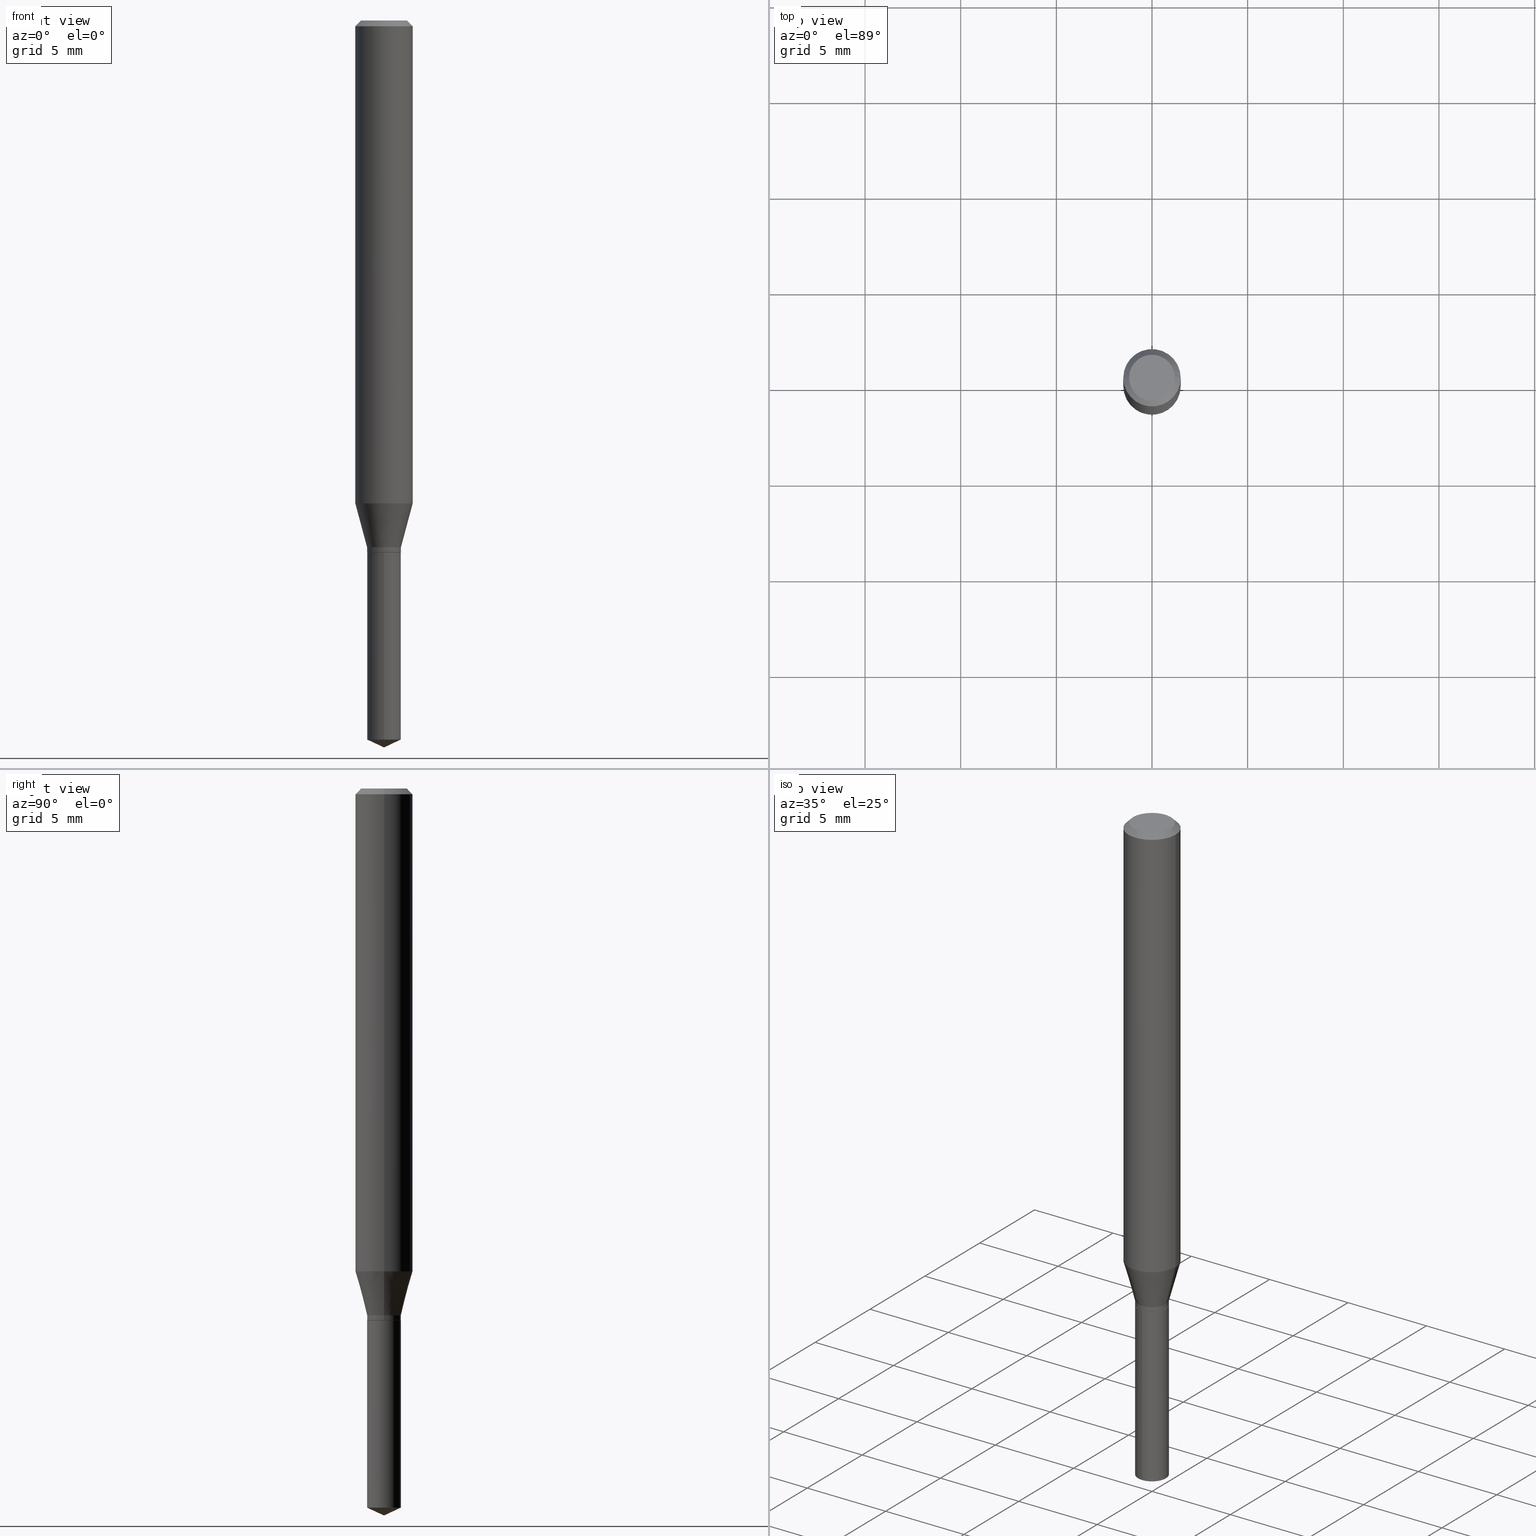
[diagram: canonical four-view strip — front | top / right | iso, engineering-drawing reading convention]
A machine part, canonical four-view strip (front | top / right | iso — engineering-drawing reading convention). The complete STEP part file that produces these views, byte-faithful:
ISO-10303-21;
HEADER;
FILE_DESCRIPTION (( 'STEP AP203' ),
    '1' );
FILE_NAME ('07573.STEP',
    '2024-04-23T23:09:27',
    ( '' ),
    ( '' ),
    'SwSTEP 2.0',
    'SolidWorks 2023',
    '' );
FILE_SCHEMA (( 'CONFIG_CONTROL_DESIGN' ));
ENDSEC;

DATA;
#1 = EDGE_CURVE ( 'NONE', #14, #194, #490, .T. ) ;
#2 = CARTESIAN_POINT ( 'NONE',  ( 2.888098660104664204E-31, -4.123439461173780263E-17, -0.01181000000000007218 ) ) ;
#3 = LOCAL_TIME ( 19, 9, 27.00000000000000000, #22 ) ;
#4 = DIRECTION ( 'NONE',  ( -2.445470214571802116E-29, 3.491479321953280158E-15, 1.000000000000000000 ) ) ;
#5 = ORIENTED_EDGE ( 'NONE', *, *, #154, .F. ) ;
#6 = ORIENTED_EDGE ( 'NONE', *, *, #67, .F. ) ;
#7 = ADVANCED_FACE ( 'NONE', ( #228 ), #413, .F. ) ;
#8 = FACE_OUTER_BOUND ( 'NONE', #453, .T. ) ;
#9 = CIRCLE ( 'NONE', #259, 0.03434999999999999859 ) ;
#10 = CARTESIAN_POINT ( 'NONE',  ( 2.676565608369631794E-29, -3.821426325363822773E-15, -1.094499999999999806 ) ) ;
#11 = ADVANCED_BREP_SHAPE_REPRESENTATION ( '07573', ( #165, #324, #473 ), #87 ) ;
#12 = APPROVAL_PERSON_ORGANIZATION ( #247, #250, #180 ) ;
#13 = VERTEX_POINT ( 'NONE', #85 ) ;
#14 = VERTEX_POINT ( 'NONE', #417 ) ;
#15 = DIRECTION ( 'NONE',  ( 1.000000000000000000, -6.982962677686261977E-15, 0.000000000000000000 ) ) ;
#16 = DIRECTION ( 'NONE',  ( -6.982962677686265922E-15, -1.000000000000000000, 0.000000000000000000 ) ) ;
#17 = ADVANCED_FACE ( 'NONE', ( #288 ), #277, .T. ) ;
#18 = ORIENTED_EDGE ( 'NONE', *, *, #223, .T. ) ;
#19 = LINE ( 'NONE', #386, #390 ) ;
#20 = CARTESIAN_POINT ( 'NONE',  ( 2.650888185904688008E-29, -3.784765771305969621E-15, -1.084000000000000075 ) ) ;
#21 = ORIENTED_EDGE ( 'NONE', *, *, #211, .T. ) ;
#22 = COORDINATED_UNIVERSAL_TIME_OFFSET ( 5, 0, .BEHIND. ) ;
#23 = DIRECTION ( 'NONE',  ( -2.445468806185136597E-29, 3.491481338843145583E-15, 1.000000000000000000 ) ) ;
#24 = ORIENTED_EDGE ( 'NONE', *, *, #410, .F. ) ;
#25 = EDGE_LOOP ( 'NONE', ( #5, #361, #137, #60 ) ) ;
#26 = CARTESIAN_POINT ( 'NONE',  ( 2.676565608369632355E-29, -3.821426325363822773E-15, -1.094500000000000028 ) ) ;
#27 = CLOSED_SHELL ( 'NONE', ( #382, #123, #360, #486, #7 ) ) ;
#28 = PRODUCT_DEFINITION_FORMATION_WITH_SPECIFIED_SOURCE ( 'ANY', '', #313, .NOT_KNOWN. ) ;
#29 = CARTESIAN_POINT ( 'NONE',  ( -9.261968845786000133E-28, 1.322362114038720264E-13, 37.87397874015748300 ) ) ;
#30 = PERSON_AND_ORGANIZATION ( #380, #157 ) ;
#31 = ADVANCED_FACE ( 'NONE', ( #373 ), #297, .T. ) ;
#32 = VECTOR ( 'NONE', #183, 39.37007874015748854 ) ;
#33 = CC_DESIGN_APPROVAL ( #250, ( #28 ) ) ;
#34 = EDGE_CURVE ( 'NONE', #347, #56, #79, .T. ) ;
#35 = CARTESIAN_POINT ( 'NONE',  ( -3.626063974181176191E-30, -8.173693616580033014E-15, -1.094500000000000028 ) ) ;
#36 = LINE ( 'NONE', #310, #190 ) ;
#37 = PERSON_AND_ORGANIZATION_ROLE ( 'design_supplier' ) ;
#38 = EDGE_CURVE ( 'NONE', #256, #160, #416, .T. ) ;
#39 = APPLICATION_CONTEXT ( 'configuration controlled 3d designs of mechanical parts and assemblies' ) ;
#40 = ORIENTED_EDGE ( 'NONE', *, *, #142, .F. ) ;
#41 = CYLINDRICAL_SURFACE ( 'NONE', #383, 0.03484999999999999903 ) ;
#42 = ORIENTED_EDGE ( 'NONE', *, *, #67, .T. ) ;
#43 = LOCAL_TIME ( 19, 9, 27.00000000000000000, #279 ) ;
#44 = DIRECTION ( 'NONE',  ( 2.445468806185136597E-29, -3.491481338843145583E-15, -1.000000000000000000 ) ) ;
#45 = LENGTH_MEASURE_WITH_UNIT ( LENGTH_MEASURE( 0.02539999999999999897 ), #290 );
#46 = CARTESIAN_POINT ( 'NONE',  ( 0.05905000000000006077, -4.123439461173744764E-16, 2.879382386107503023E-30 ) ) ;
#47 = VECTOR ( 'NONE', #242, 39.37007874015748143 ) ;
#48 = DIRECTION ( 'NONE',  ( -1.000000000000000000, 6.982962677686266711E-15, 0.000000000000000000 ) ) ;
#49 = AXIS2_PLACEMENT_3D ( 'NONE', #110, #116, #351 ) ;
#50 = EDGE_CURVE ( 'NONE', #311, #342, #156, .T. ) ;
#51 = FACE_OUTER_BOUND ( 'NONE', #396, .T. ) ;
#52 = DIRECTION ( 'NONE',  ( 1.000000000000000000, -6.982962677686261189E-15, 0.000000000000000000 ) ) ;
#53 = VERTEX_POINT ( 'NONE', #420 ) ;
#54 = DIRECTION ( 'NONE',  ( -2.445468806185136597E-29, 3.491481338843145583E-15, 1.000000000000000000 ) ) ;
#55 = CIRCLE ( 'NONE', #127, 0.05904999999999999832 ) ;
#56 = VERTEX_POINT ( 'NONE', #295 ) ;
#57 = CARTESIAN_POINT ( 'NONE',  ( -2.433562493173396016E-16, -0.03485000000000382236, -1.094499999999999806 ) ) ;
#58 = CARTESIAN_POINT ( 'NONE',  ( 3.658667988020872822E-29, -5.223602213574301462E-15, -1.496099999999999985 ) ) ;
#59 = ORIENTED_EDGE ( 'NONE', *, *, #280, .T. ) ;
#60 = ORIENTED_EDGE ( 'NONE', *, *, #336, .F. ) ;
#61 = CONICAL_SURFACE ( 'NONE', #391, 0.03434999999999999859, 0.7853981633972775267 ) ;
#62 = AXIS2_PLACEMENT_3D ( 'NONE', #457, #78, #366 ) ;
#63 = ORIENTED_EDGE ( 'NONE', *, *, #142, .T. ) ;
#64 = CC_DESIGN_PERSON_AND_ORGANIZATION_ASSIGNMENT ( #337, #171, ( #313 ) ) ;
#65 = LINE ( 'NONE', #451, #306 ) ;
#66 = COORDINATED_UNIVERSAL_TIME_OFFSET ( 5, 0, .BEHIND. ) ;
#67 = EDGE_CURVE ( 'NONE', #468, #285, #9, .T. ) ;
#68 = CALENDAR_DATE ( 2024, 23, 4 ) ;
#69 = AXIS2_PLACEMENT_3D ( 'NONE', #161, #128, #92 ) ;
#70 = CARTESIAN_POINT ( 'NONE',  ( -0.04724000000000000421, 3.504923541997677355E-16, -3.380025165670481712E-19 ) ) ;
#71 = CC_DESIGN_SECURITY_CLASSIFICATION ( #309, ( #28 ) ) ;
#72 = PERSON_AND_ORGANIZATION_ROLE ( 'creator' ) ;
#73 = CC_DESIGN_PERSON_AND_ORGANIZATION_ASSIGNMENT ( #225, #362, ( #309 ) ) ;
#74 = FACE_OUTER_BOUND ( 'NONE', #201, .T. ) ;
#75 = ORIENTED_EDGE ( 'NONE', *, *, #414, .T. ) ;
#76 = DIRECTION ( 'NONE',  ( 1.000000000000000000, -6.982962677686266711E-15, 0.000000000000000000 ) ) ;
#77 = ORIENTED_EDGE ( 'NONE', *, *, #1, .F. ) ;
#78 = DIRECTION ( 'NONE',  ( -2.445470214571802116E-29, 3.491479321953280158E-15, 1.000000000000000000 ) ) ;
#79 = CIRCLE ( 'NONE', #418, 0.04724000000000000421 ) ;
#80 = CARTESIAN_POINT ( 'NONE',  ( 8.265746106709734507E-48, -1.180129479067563789E-33, -3.380025165646692144E-19 ) ) ;
#81 = VECTOR ( 'NONE', #444, 39.37007874015748143 ) ;
#82 = EDGE_CURVE ( 'NONE', #304, #13, #263, .T. ) ;
#83 = CARTESIAN_POINT ( 'NONE',  ( 2.676565608369632355E-29, -3.821426325363822773E-15, -1.094500000000000028 ) ) ;
#84 = DIRECTION ( 'NONE',  ( -2.445470214571802116E-29, 3.491479321953280158E-15, 1.000000000000000000 ) ) ;
#85 = CARTESIAN_POINT ( 'NONE',  ( 2.476241434124310969E-16, 0.03484999999999483650, -1.479849178113298525 ) ) ;
#86 = DIRECTION ( 'NONE',  ( 1.000000000000000000, -6.982962677686266711E-15, 4.876185090822587894E-29 ) ) ;
#87 =( GEOMETRIC_REPRESENTATION_CONTEXT ( 3 ) GLOBAL_UNCERTAINTY_ASSIGNED_CONTEXT ( ( #482 ) ) GLOBAL_UNIT_ASSIGNED_CONTEXT ( ( #196, #443, #484 ) ) REPRESENTATION_CONTEXT ( 'NONE', 'WORKASPACE' ) );
#88 = APPROVAL ( #466, 'UNSPECIFIED' ) ;
#89 = AXIS2_PLACEMENT_3D ( 'NONE', #255, #412, #76 ) ;
#90 = LINE ( 'NONE', #167, #426 ) ;
#91 = EDGE_LOOP ( 'NONE', ( #299, #197, #395, #77 ) ) ;
#92 = DIRECTION ( 'NONE',  ( -6.982962677686266711E-15, -1.000000000000000000, 3.520397390770412060E-15 ) ) ;
#93 = LINE ( 'NONE', #202, #316 ) ;
#94 = CLOSED_SHELL ( 'NONE', ( #174, #17, #319, #181, #428, #372, #177, #31, #375, #479, #394, #289 ) ) ;
#95 = CIRCLE ( 'NONE', #213, 0.03434999999999999859 ) ;
#96 = AXIS2_PLACEMENT_3D ( 'NONE', #254, #193, #419 ) ;
#97 = EDGE_CURVE ( 'NONE', #308, #342, #424, .T. ) ;
#98 = DIRECTION ( 'NONE',  ( -2.445468806185136597E-29, 3.491481338843145583E-15, 1.000000000000000000 ) ) ;
#99 = ORIENTED_EDGE ( 'NONE', *, *, #82, .F. ) ;
#100 = CYLINDRICAL_SURFACE ( 'NONE', #346, 0.05905000000000006077 ) ;
#101 = DATE_TIME_ROLE ( 'creation_date' ) ;
#102 = APPROVAL_ROLE ( '' ) ;
#103 = DATE_AND_TIME ( #249, #43 ) ;
#104 = LINE ( 'NONE', #210, #81 ) ;
#105 = CARTESIAN_POINT ( 'NONE',  ( 0.05904999999999999832, -4.535783407291118600E-16, -0.01181000000000007218 ) ) ;
#106 = ORIENTED_EDGE ( 'NONE', *, *, #348, .T. ) ;
#107 = CIRCLE ( 'NONE', #399, 0.03484999999999999903 ) ;
#108 = CYLINDRICAL_SURFACE ( 'NONE', #96, 0.03484999999999999903 ) ;
#109 = PERSON_AND_ORGANIZATION ( #380, #157 ) ;
#110 = CARTESIAN_POINT ( 'NONE',  ( 2.650888185904688008E-29, -3.784765771305969621E-15, -1.084000000000000075 ) ) ;
#111 = EDGE_LOOP ( 'NONE', ( #236, #21, #106, #24 ) ) ;
#112 = DIRECTION ( 'NONE',  ( 1.000000000000000000, -6.982962677686265922E-15, 4.876176775795935793E-29 ) ) ;
#113 = ORIENTED_EDGE ( 'NONE', *, *, #172, .F. ) ;
#114 = CARTESIAN_POINT ( 'NONE',  ( -0.03484999999999999903, 2.476241434123949079E-16, -1.714248878953834781E-30 ) ) ;
#115 = ORIENTED_EDGE ( 'NONE', *, *, #1, .T. ) ;
#116 = DIRECTION ( 'NONE',  ( -2.445468806185136597E-29, 3.491481338843145583E-15, 1.000000000000000000 ) ) ;
#117 = AXIS2_PLACEMENT_3D ( 'NONE', #349, #303, #86 ) ;
#118 = FACE_OUTER_BOUND ( 'NONE', #387, .T. ) ;
#119 = ORIENTED_EDGE ( 'NONE', *, *, #50, .T. ) ;
#120 = CIRCLE ( 'NONE', #463, 0.05905000000000011628 ) ;
#121 = CARTESIAN_POINT ( 'NONE',  ( 2.676565608369631794E-29, -3.821426325363822773E-15, -1.094499999999999806 ) ) ;
#122 = DIRECTION ( 'NONE',  ( 1.000000000000000000, -6.982962677686261189E-15, 0.000000000000000000 ) ) ;
#123 = ADVANCED_FACE ( 'NONE', ( #234 ), #146, .T. ) ;
#124 = DIRECTION ( 'NONE',  ( -2.445468806185136597E-29, 3.491481338843145583E-15, 1.000000000000000000 ) ) ;
#125 = ORIENTED_EDGE ( 'NONE', *, *, #158, .T. ) ;
#126 = ORIENTED_EDGE ( 'NONE', *, *, #97, .F. ) ;
#127 = AXIS2_PLACEMENT_3D ( 'NONE', #135, #469, #170 ) ;
#128 = DIRECTION ( 'NONE',  ( -2.445470214571802116E-29, 3.491479321953280158E-15, 1.000000000000000000 ) ) ;
#129 = VECTOR ( 'NONE', #292, 39.37007874015748143 ) ;
#130 = DIRECTION ( 'NONE',  ( 6.439704144417042975E-15, 0.9063077870366541555, 0.4226182617406906150 ) ) ;
#131 = VERTEX_POINT ( 'NONE', #267 ) ;
#132 = DIRECTION ( 'NONE',  ( 0.7071067811864267805, -2.468850131080992517E-15, 0.7071067811866682540 ) ) ;
#133 = CARTESIAN_POINT ( 'NONE',  ( 0.000000000000000000, 0.000000000000000000, 0.000000000000000000 ) ) ;
#134 = CC_DESIGN_DATE_AND_TIME_ASSIGNMENT ( #219, #101, ( #333 ) ) ;
#135 = CARTESIAN_POINT ( 'NONE',  ( 2.888098660104664204E-31, -4.123439461173780263E-17, -0.01181000000000007218 ) ) ;
#136 = VECTOR ( 'NONE', #130, 39.37007874015748143 ) ;
#137 = ORIENTED_EDGE ( 'NONE', *, *, #140, .T. ) ;
#138 = PERSON_AND_ORGANIZATION ( #380, #157 ) ;
#139 = APPROVAL_PERSON_ORGANIZATION ( #30, #204, #102 ) ;
#140 = EDGE_CURVE ( 'NONE', #342, #308, #55, .T. ) ;
#141 = LINE ( 'NONE', #215, #400 ) ;
#142 = EDGE_CURVE ( 'NONE', #131, #13, #252, .T. ) ;
#143 = DIRECTION ( 'NONE',  ( -2.445468806185136597E-29, 3.491481338843145583E-15, 1.000000000000000000 ) ) ;
#144 = PERSON_AND_ORGANIZATION ( #380, #157 ) ;
#145 = FACE_OUTER_BOUND ( 'NONE', #270, .T. ) ;
#146 = CONICAL_SURFACE ( 'NONE', #69, 84.42940631927534412, 1.134464013796320447 ) ;
#147 = CIRCLE ( 'NONE', #173, 0.03484999999999999903 ) ;
#148 = DIRECTION ( 'NONE',  ( 1.000000000000000000, -6.982962677686261977E-15, 0.000000000000000000 ) ) ;
#149 = AXIS2_PLACEMENT_3D ( 'NONE', #189, #229, #329 ) ;
#150 = EDGE_LOOP ( 'NONE', ( #113, #356, #40 ) ) ;
#151 = EDGE_CURVE ( 'NONE', #162, #53, #93, .T. ) ;
#152 = DIRECTION ( 'NONE',  ( -2.445468806185136597E-29, 3.491481338843145583E-15, 1.000000000000000000 ) ) ;
#153 = EDGE_LOOP ( 'NONE', ( #442, #411 ) ) ;
#154 = EDGE_CURVE ( 'NONE', #56, #347, #335, .T. ) ;
#155 = PLANE ( 'NONE',  #235 ) ;
#156 = LINE ( 'NONE', #46, #187 ) ;
#157 = ORGANIZATION ( 'UNSPECIFIED', 'UNSPECIFIED', '' ) ;
#158 = EDGE_CURVE ( 'NONE', #53, #308, #300, .T. ) ;
#159 = DIRECTION ( 'NONE',  ( 2.445470214571801836E-29, -3.491479321953280158E-15, -1.000000000000000000 ) ) ;
#160 = VERTEX_POINT ( 'NONE', #264 ) ;
#161 = CARTESIAN_POINT ( 'NONE',  ( -9.261968845786000133E-28, 1.322362114038720264E-13, 37.87397874015748300 ) ) ;
#162 = VERTEX_POINT ( 'NONE', #272 ) ;
#163 = DIRECTION ( 'NONE',  ( -2.445468806185136597E-29, 3.491481338843145583E-15, 1.000000000000000000 ) ) ;
#164 = EDGE_CURVE ( 'NONE', #468, #256, #19, .T. ) ;
#165 = MANIFOLD_SOLID_BREP ( 'Body-Move/Copy2[1]', #27 ) ;
#166 = CONICAL_SURFACE ( 'NONE', #244, 0.03434999999999999859, 0.7853981633972775267 ) ;
#167 = CARTESIAN_POINT ( 'NONE',  ( -0.03434999999999999859, -3.577354895630228419E-15, -1.094500000000000028 ) ) ;
#168 = ORIENTED_EDGE ( 'NONE', *, *, #172, .T. ) ;
#169 = PRODUCT_RELATED_PRODUCT_CATEGORY ( 'detail', '', ( #313 ) ) ;
#170 = DIRECTION ( 'NONE',  ( 1.000000000000000000, -6.982962677686266711E-15, 0.000000000000000000 ) ) ;
#171 = PERSON_AND_ORGANIZATION_ROLE ( 'design_owner' ) ;
#172 = EDGE_CURVE ( 'NONE', #304, #131, #435, .T. ) ;
#173 = AXIS2_PLACEMENT_3D ( 'NONE', #121, #84, #257 ) ;
#174 = ADVANCED_FACE ( 'NONE', ( #51 ), #61, .T. ) ;
#175 = APPLICATION_PROTOCOL_DEFINITION ( 'international standard', 'config_control_design', 1994, #275 ) ;
#176 = ORIENTED_EDGE ( 'NONE', *, *, #280, .F. ) ;
#177 = ADVANCED_FACE ( 'NONE', ( #345 ), #392, .T. ) ;
#178 = EDGE_LOOP ( 'NONE', ( #475, #334, #119, #126 ) ) ;
#179 = FACE_OUTER_BOUND ( 'NONE', #231, .T. ) ;
#180 = APPROVAL_ROLE ( '' ) ;
#181 = ADVANCED_FACE ( 'NONE', ( #266 ), #365, .T. ) ;
#182 = CARTESIAN_POINT ( 'NONE',  ( 2.675342873966538993E-29, -3.819680584694400481E-15, -1.093999999999999861 ) ) ;
#183 = DIRECTION ( 'NONE',  ( 0.2588190451025211281, 1.565188264969622954E-15, 0.9659258262890679791 ) ) ;
#184 = COORDINATED_UNIVERSAL_TIME_OFFSET ( 5, 0, .BEHIND. ) ;
#185 = DIRECTION ( 'NONE',  ( -2.438088387897960049E-29, 3.491481338843145188E-15, 1.000000000000000000 ) ) ;
#186 = ORIENTED_EDGE ( 'NONE', *, *, #164, .F. ) ;
#187 = VECTOR ( 'NONE', #462, 39.37007874015748143 ) ;
#188 = AXIS2_PLACEMENT_3D ( 'NONE', #415, #406, #461 ) ;
#189 = CARTESIAN_POINT ( 'NONE',  ( 2.888098660104664204E-31, -4.123439461173780263E-17, -0.01181000000000007218 ) ) ;
#190 = VECTOR ( 'NONE', #357, 39.37007874015748143 ) ;
#191 = ORIENTED_EDGE ( 'NONE', *, *, #454, .T. ) ;
#192 = CARTESIAN_POINT ( 'NONE',  ( 2.476241434124216306E-16, 0.03484999999999618264, -1.094500000000000028 ) ) ;
#193 = DIRECTION ( 'NONE',  ( -2.445470214571802116E-29, 3.491479321953280158E-15, 1.000000000000000000 ) ) ;
#194 = VERTEX_POINT ( 'NONE', #57 ) ;
#195 = EDGE_CURVE ( 'NONE', #285, #160, #90, .T. ) ;
#196 =( CONVERSION_BASED_UNIT ( 'INCH', #45 ) LENGTH_UNIT ( ) NAMED_UNIT ( #325 ) );
#197 = ORIENTED_EDGE ( 'NONE', *, *, #430, .T. ) ;
#198 = CIRCLE ( 'NONE', #327, 0.03484999999999999903 ) ;
#199 = DIRECTION ( 'NONE',  ( 1.000000000000000000, -6.982962677686266711E-15, 4.876176775795935793E-29 ) ) ;
#200 = DIRECTION ( 'NONE',  ( 1.000000000000000000, -6.982962677686261189E-15, 0.000000000000000000 ) ) ;
#201 = EDGE_LOOP ( 'NONE', ( #63, #18, #330, #317 ) ) ;
#202 = CARTESIAN_POINT ( 'NONE',  ( -0.03484999999999999903, -3.537141627893574762E-15, -1.084000000000000075 ) ) ;
#203 = DIRECTION ( 'NONE',  ( 1.000000000000000000, -6.982962677686261977E-15, 0.000000000000000000 ) ) ;
#204 = APPROVAL ( #403, 'UNSPECIFIED' ) ;
#205 = EDGE_LOOP ( 'NONE', ( #291, #404, #344, #246 ) ) ;
#206 = AXIS2_PLACEMENT_3D ( 'NONE', #402, #320, #260 ) ;
#207 = DIRECTION ( 'NONE',  ( -2.445468806185136597E-29, 3.491481338843145583E-15, 1.000000000000000000 ) ) ;
#208 = MECHANICAL_CONTEXT ( 'NONE', #275, 'mechanical' ) ;
#209 = EDGE_CURVE ( 'NONE', #285, #468, #95, .T. ) ;
#210 = CARTESIAN_POINT ( 'NONE',  ( -2.433562493173396016E-16, -0.03485000000000382236, -1.094499999999999806 ) ) ;
#211 = EDGE_CURVE ( 'NONE', #162, #450, #328, .T. ) ;
#212 = PRODUCT_DEFINITION_SHAPE ( 'NONE', 'NONE',  #333 ) ;
#213 = AXIS2_PLACEMENT_3D ( 'NONE', #301, #207, #52 ) ;
#214 = DATE_AND_TIME ( #68, #405 ) ;
#215 = CARTESIAN_POINT ( 'NONE',  ( 0.03484999999999999903, -2.433562493173664229E-16, 1.699347606364883697E-30 ) ) ;
#216 = COORDINATED_UNIVERSAL_TIME_OFFSET ( 5, 0, .BEHIND. ) ;
#217 = AXIS2_PLACEMENT_3D ( 'NONE', #2, #44, #48 ) ;
#218 = CC_DESIGN_PERSON_AND_ORGANIZATION_ASSIGNMENT ( #109, #37, ( #28 ) ) ;
#219 = DATE_AND_TIME ( #359, #245 ) ;
#220 = CONICAL_SURFACE ( 'NONE', #447, 84.42940631927534412, 1.134464013796320447 ) ;
#221 = LINE ( 'NONE', #367, #32 ) ;
#222 = ORIENTED_EDGE ( 'NONE', *, *, #331, .F. ) ;
#223 = EDGE_CURVE ( 'NONE', #13, #14, #265, .T. ) ;
#224 = ORIENTED_EDGE ( 'NONE', *, *, #237, .F. ) ;
#225 = PERSON_AND_ORGANIZATION ( #380, #157 ) ;
#226 = ORIENTED_EDGE ( 'NONE', *, *, #454, .F. ) ;
#227 = DIRECTION ( 'NONE',  ( -2.445468806185136597E-29, 3.491481338843145583E-15, 1.000000000000000000 ) ) ;
#228 = FACE_OUTER_BOUND ( 'NONE', #370, .T. ) ;
#229 = DIRECTION ( 'NONE',  ( 2.445468806185136597E-29, -3.491481338843145583E-15, -1.000000000000000000 ) ) ;
#230 = DIRECTION ( 'NONE',  ( -2.445468806185136597E-29, 3.491481338843145583E-15, 1.000000000000000000 ) ) ;
#231 = EDGE_LOOP ( 'NONE', ( #385, #125, #258, #350 ) ) ;
#232 = ORIENTED_EDGE ( 'NONE', *, *, #209, .F. ) ;
#233 = CC_DESIGN_APPROVAL ( #88, ( #333 ) ) ;
#234 = FACE_OUTER_BOUND ( 'NONE', #150, .T. ) ;
#235 = AXIS2_PLACEMENT_3D ( 'NONE', #35, #185, #112 ) ;
#236 = ORIENTED_EDGE ( 'NONE', *, *, #151, .F. ) ;
#237 = EDGE_CURVE ( 'NONE', #311, #53, #120, .T. ) ;
#238 = DIRECTION ( 'NONE',  ( -0.7071067811864267805, 7.493145998869918709E-15, 0.7071067811866682540 ) ) ;
#239 = EDGE_LOOP ( 'NONE', ( #59, #358, #224, #438 ) ) ;
#240 = ORIENTED_EDGE ( 'NONE', *, *, #211, .F. ) ;
#241 = EDGE_CURVE ( 'NONE', #131, #194, #104, .T. ) ;
#242 = DIRECTION ( 'NONE',  ( -2.445468806185136877E-29, 3.491481338843145188E-15, 1.000000000000000000 ) ) ;
#243 = CARTESIAN_POINT ( 'NONE',  ( 2.676565608369632355E-29, -3.821426325363822773E-15, -1.094500000000000028 ) ) ;
#244 = AXIS2_PLACEMENT_3D ( 'NONE', #26, #98, #307 ) ;
#245 = LOCAL_TIME ( 19, 9, 27.00000000000000000, #216 ) ;
#246 = ORIENTED_EDGE ( 'NONE', *, *, #414, .F. ) ;
#247 = PERSON_AND_ORGANIZATION ( #380, #157 ) ;
#248 = CYLINDRICAL_SURFACE ( 'NONE', #206, 0.03484999999999999903 ) ;
#249 = CALENDAR_DATE ( 2024, 23, 4 ) ;
#250 = APPROVAL ( #401, 'UNSPECIFIED' ) ;
#251 = DIRECTION ( 'NONE',  ( 1.000000000000000000, -6.982962677686266711E-15, 4.876176775795935793E-29 ) ) ;
#252 = CIRCLE ( 'NONE', #470, 0.03484999999999999903 ) ;
#253 = CIRCLE ( 'NONE', #49, 0.03484999999999999903 ) ;
#254 = CARTESIAN_POINT ( 'NONE',  ( 2.676565608369631794E-29, -3.821426325363822773E-15, -1.094499999999999806 ) ) ;
#255 = CARTESIAN_POINT ( 'NONE',  ( 2.430024131145899834E-29, -3.469430436150130776E-15, -0.9936843704568328883 ) ) ;
#256 = VERTEX_POINT ( 'NONE', #483 ) ;
#257 = DIRECTION ( 'NONE',  ( -6.982962677686265922E-15, -1.000000000000000000, 3.919437580580004543E-15 ) ) ;
#258 = ORIENTED_EDGE ( 'NONE', *, *, #140, .F. ) ;
#259 = AXIS2_PLACEMENT_3D ( 'NONE', #83, #465, #122 ) ;
#260 = DIRECTION ( 'NONE',  ( 1.000000000000000000, -6.982962677686267499E-15, 4.876176775795936353E-29 ) ) ;
#261 = CARTESIAN_POINT ( 'NONE',  ( 2.676565608369631794E-29, -3.821426325363822773E-15, -1.094499999999999806 ) ) ;
#262 = FACE_OUTER_BOUND ( 'NONE', #153, .T. ) ;
#263 = LINE ( 'NONE', #474, #136 ) ;
#264 = CARTESIAN_POINT ( 'NONE',  ( -0.03484999999999999903, -3.554599034587790192E-15, -1.093999999999999861 ) ) ;
#265 = LINE ( 'NONE', #192, #318 ) ;
#266 = FACE_OUTER_BOUND ( 'NONE', #239, .T. ) ;
#267 = CARTESIAN_POINT ( 'NONE',  ( -2.433562493173301846E-16, -0.03485000000000516851, -1.479849178113298525 ) ) ;
#268 = EDGE_CURVE ( 'NONE', #256, #450, #141, .T. ) ;
#269 = DIRECTION ( 'NONE',  ( 1.000000000000000000, -6.982962677686266711E-15, 0.000000000000000000 ) ) ;
#270 = EDGE_LOOP ( 'NONE', ( #99, #168, #381 ) ) ;
#271 = DATE_AND_TIME ( #478, #3 ) ;
#272 = CARTESIAN_POINT ( 'NONE',  ( -0.03484999999999999903, -3.554599034587790192E-15, -1.084000000000000075 ) ) ;
#273 = APPROVAL_ROLE ( '' ) ;
#274 = CARTESIAN_POINT ( 'NONE',  ( -0.05904999999999999832, -1.335756929914593970E-15, -0.01181000000000007218 ) ) ;
#275 = APPLICATION_CONTEXT ( 'configuration controlled 3d designs of mechanical parts and assemblies' ) ;
#276 = ORIENTED_EDGE ( 'NONE', *, *, #34, .F. ) ;
#277 = CONICAL_SURFACE ( 'NONE', #217, 0.05904999999999999832, 0.7853981633974452814 ) ;
#278 = DIRECTION ( 'NONE',  ( -6.982962677686266711E-15, -1.000000000000000000, 3.520397390770412060E-15 ) ) ;
#279 = COORDINATED_UNIVERSAL_TIME_OFFSET ( 5, 0, .BEHIND. ) ;
#280 = EDGE_CURVE ( 'NONE', #450, #162, #253, .T. ) ;
#281 = ORIENTED_EDGE ( 'NONE', *, *, #195, .T. ) ;
#282 = AXIS2_PLACEMENT_3D ( 'NONE', #10, #422, #379 ) ;
#283 = CYLINDRICAL_SURFACE ( 'NONE', #62, 0.03484999999999999903 ) ;
#284 = CIRCLE ( 'NONE', #89, 0.05905000000000011628 ) ;
#285 = VERTEX_POINT ( 'NONE', #441 ) ;
#286 = DIRECTION ( 'NONE',  ( -2.445468806185136597E-29, 3.491481338843145583E-15, 1.000000000000000000 ) ) ;
#287 = DIRECTION ( 'NONE',  ( -6.982962677686265922E-15, -1.000000000000000000, 0.000000000000000000 ) ) ;
#288 = FACE_OUTER_BOUND ( 'NONE', #25, .T. ) ;
#289 = ADVANCED_FACE ( 'NONE', ( #439 ), #166, .T. ) ;
#290 =( LENGTH_UNIT ( ) NAMED_UNIT ( * ) SI_UNIT ( $, .METRE. ) );
#291 = ORIENTED_EDGE ( 'NONE', *, *, #195, .F. ) ;
#292 = DIRECTION ( 'NONE',  ( -2.445468806185136877E-29, 3.491481338843145188E-15, 1.000000000000000000 ) ) ;
#293 = AXIS2_PLACEMENT_3D ( 'NONE', #20, #393, #427 ) ;
#294 = LOCAL_TIME ( 19, 9, 27.00000000000000000, #66 ) ;
#295 = CARTESIAN_POINT ( 'NONE',  ( 0.04724000000000000421, -3.852183633974369345E-16, -3.380025165621689721E-19 ) ) ;
#296 = APPLICATION_PROTOCOL_DEFINITION ( 'international standard', 'config_control_design', 1994, #39 ) ;
#297 = CYLINDRICAL_SURFACE ( 'NONE', #398, 0.05905000000000006077 ) ;
#298 = CARTESIAN_POINT ( 'NONE',  ( 2.888098660104664204E-31, -4.123439461173780263E-17, -0.01181000000000007218 ) ) ;
#299 = ORIENTED_EDGE ( 'NONE', *, *, #223, .F. ) ;
#300 = LINE ( 'NONE', #480, #47 ) ;
#301 = CARTESIAN_POINT ( 'NONE',  ( 2.676565608369632355E-29, -3.821426325363822773E-15, -1.094500000000000028 ) ) ;
#302 = DIRECTION ( 'NONE',  ( 0.000000000000000000, 0.000000000000000000, 1.000000000000000000 ) ) ;
#303 = DIRECTION ( 'NONE',  ( -2.445468806185136597E-29, 3.491481338843145583E-15, 1.000000000000000000 ) ) ;
#304 = VERTEX_POINT ( 'NONE', #58 ) ;
#305 = VECTOR ( 'NONE', #384, 39.37007874015748854 ) ;
#306 = VECTOR ( 'NONE', #487, 39.37007874015748143 ) ;
#307 = DIRECTION ( 'NONE',  ( 1.000000000000000000, -6.982962677686261189E-15, 0.000000000000000000 ) ) ;
#308 = VERTEX_POINT ( 'NONE', #274 ) ;
#309 = SECURITY_CLASSIFICATION ( '', '', #448 ) ;
#310 = CARTESIAN_POINT ( 'NONE',  ( -0.05904999999999999832, 3.711095515056362547E-16, -0.01181000000000007218 ) ) ;
#311 = VERTEX_POINT ( 'NONE', #352 ) ;
#312 = DESIGN_CONTEXT ( 'detailed design', #39, 'design' ) ;
#313 = PRODUCT ( '07573', '07573', '', ( #208 ) ) ;
#314 = DIRECTION ( 'NONE',  ( -2.445470214571802116E-29, 3.491479321953280158E-15, 1.000000000000000000 ) ) ;
#315 = DIRECTION ( 'NONE',  ( 1.000000000000000000, -6.982962677686266711E-15, 0.000000000000000000 ) ) ;
#316 = VECTOR ( 'NONE', #429, 39.37007874015748854 ) ;
#317 = ORIENTED_EDGE ( 'NONE', *, *, #241, .F. ) ;
#318 = VECTOR ( 'NONE', #377, 39.37007874015748143 ) ;
#319 = ADVANCED_FACE ( 'NONE', ( #179 ), #100, .T. ) ;
#320 = DIRECTION ( 'NONE',  ( -2.445468806185136597E-29, 3.491481338843145583E-15, 1.000000000000000000 ) ) ;
#321 = APPROVAL_DATE_TIME ( #103, #250 ) ;
#322 = PLANE ( 'NONE',  #188 ) ;
#323 = DATE_AND_TIME ( #485, #294 ) ;
#324 = MANIFOLD_SOLID_BREP ( 'Body-Move/Copy2[2]', #94 ) ;
#325 = DIMENSIONAL_EXPONENTS ( 1.000000000000000000, 0.000000000000000000, 0.000000000000000000, 0.000000000000000000, 0.000000000000000000, 0.000000000000000000, 0.000000000000000000 ) ;
#326 = DIRECTION ( 'NONE',  ( 6.982962677686265922E-15, 1.000000000000000000, -3.491479321953280158E-15 ) ) ;
#327 = AXIS2_PLACEMENT_3D ( 'NONE', #421, #4, #287 ) ;
#328 = CIRCLE ( 'NONE', #436, 0.03484999999999999903 ) ;
#329 = DIRECTION ( 'NONE',  ( -1.000000000000000000, 6.982962677686266711E-15, 0.000000000000000000 ) ) ;
#330 = ORIENTED_EDGE ( 'NONE', *, *, #471, .F. ) ;
#331 = EDGE_CURVE ( 'NONE', #56, #342, #65, .T. ) ;
#332 = CARTESIAN_POINT ( 'NONE',  ( 2.675342873966538993E-29, -3.819680584694400481E-15, -1.093999999999999861 ) ) ;
#333 = PRODUCT_DEFINITION ( 'UNKNOWN', '', #28, #312 ) ;
#334 = ORIENTED_EDGE ( 'NONE', *, *, #410, .T. ) ;
#335 = CIRCLE ( 'NONE', #117, 0.04724000000000000421 ) ;
#336 = EDGE_CURVE ( 'NONE', #347, #308, #36, .T. ) ;
#337 = PERSON_AND_ORGANIZATION ( #380, #157 ) ;
#338 = APPROVAL_PERSON_ORGANIZATION ( #138, #88, #273 ) ;
#339 = DIRECTION ( 'NONE',  ( 1.000000000000000000, -6.982962677686266711E-15, 4.876185090822587894E-29 ) ) ;
#340 = CARTESIAN_POINT ( 'NONE',  ( 2.650888185904688008E-29, -3.784765771305969621E-15, -1.084000000000000075 ) ) ;
#341 = ORIENTED_EDGE ( 'NONE', *, *, #268, .T. ) ;
#342 = VERTEX_POINT ( 'NONE', #105 ) ;
#343 = CARTESIAN_POINT ( 'NONE',  ( 2.650888185904688008E-29, -3.784765771305969621E-15, -1.084000000000000075 ) ) ;
#344 = ORIENTED_EDGE ( 'NONE', *, *, #164, .T. ) ;
#345 = FACE_OUTER_BOUND ( 'NONE', #111, .T. ) ;
#346 = AXIS2_PLACEMENT_3D ( 'NONE', #449, #143, #251 ) ;
#347 = VERTEX_POINT ( 'NONE', #70 ) ;
#348 = EDGE_CURVE ( 'NONE', #450, #311, #221, .T. ) ;
#349 = CARTESIAN_POINT ( 'NONE',  ( 8.265746106709734507E-48, -1.180129479067563789E-33, -3.380025165646692144E-19 ) ) ;
#350 = ORIENTED_EDGE ( 'NONE', *, *, #50, .F. ) ;
#351 = DIRECTION ( 'NONE',  ( 1.000000000000000000, -6.982962677686261977E-15, 0.000000000000000000 ) ) ;
#352 = CARTESIAN_POINT ( 'NONE',  ( 0.05905000000000011628, -3.881774382267505696E-15, -0.9936843704568328883 ) ) ;
#353 = AXIS2_PLACEMENT_3D ( 'NONE', #340, #54, #203 ) ;
#354 = DIRECTION ( 'NONE',  ( 1.000000000000000000, 0.000000000000000000, 0.000000000000000000 ) ) ;
#355 = CONICAL_SURFACE ( 'NONE', #149, 0.05904999999999999832, 0.7853981633974452814 ) ;
#356 = ORIENTED_EDGE ( 'NONE', *, *, #82, .T. ) ;
#357 = DIRECTION ( 'NONE',  ( -0.7071067811865453523, 2.468850131082234184E-15, -0.7071067811865496822 ) ) ;
#358 = ORIENTED_EDGE ( 'NONE', *, *, #151, .T. ) ;
#359 = CALENDAR_DATE ( 2024, 23, 4 ) ;
#360 = ADVANCED_FACE ( 'NONE', ( #145 ), #220, .T. ) ;
#361 = ORIENTED_EDGE ( 'NONE', *, *, #331, .T. ) ;
#362 = PERSON_AND_ORGANIZATION_ROLE ( 'classification_officer' ) ;
#363 = AXIS2_PLACEMENT_3D ( 'NONE', #298, #23, #269 ) ;
#364 = APPROVAL_DATE_TIME ( #323, #204 ) ;
#365 = CONICAL_SURFACE ( 'NONE', #293, 0.03484999999999999903, 0.2617993877991498519 ) ;
#366 = DIRECTION ( 'NONE',  ( -6.982962677686265922E-15, -1.000000000000000000, 3.919437580580004543E-15 ) ) ;
#367 = CARTESIAN_POINT ( 'NONE',  ( 0.03484999999999999903, -4.028122020623335896E-15, -1.084000000000000075 ) ) ;
#368 = PERSON_AND_ORGANIZATION_ROLE ( 'creator' ) ;
#369 = FACE_OUTER_BOUND ( 'NONE', #456, .T. ) ;
#370 = EDGE_LOOP ( 'NONE', ( #472, #115 ) ) ;
#371 = DIRECTION ( 'NONE',  ( 1.000000000000000000, -6.982962677686261977E-15, 0.000000000000000000 ) ) ;
#372 = ADVANCED_FACE ( 'NONE', ( #446 ), #248, .T. ) ;
#373 = FACE_OUTER_BOUND ( 'NONE', #178, .T. ) ;
#374 = CARTESIAN_POINT ( 'NONE',  ( 0.000000000000000000, 0.000000000000000000, 0.000000000000000000 ) ) ;
#375 = ADVANCED_FACE ( 'NONE', ( #8 ), #355, .T. ) ;
#376 = ORIENTED_EDGE ( 'NONE', *, *, #336, .T. ) ;
#377 = DIRECTION ( 'NONE',  ( -2.445470214571802396E-29, 3.491479321953280158E-15, 1.000000000000000000 ) ) ;
#378 = DIRECTION ( 'NONE',  ( 1.000000000000000000, -6.982962677686267499E-15, 4.876176775795936353E-29 ) ) ;
#379 = DIRECTION ( 'NONE',  ( -6.982962677686265922E-15, -1.000000000000000000, 3.919437580580004543E-15 ) ) ;
#380 = PERSON ( 'UNSPECIFIED', 'UNSPECIFIED', 'UNSPECIFIED', ('UNSPECIFIED'), ('UNSPECIFIED'), ('UNSPECIFIED') ) ;
#381 = ORIENTED_EDGE ( 'NONE', *, *, #430, .F. ) ;
#382 = ADVANCED_FACE ( 'NONE', ( #74 ), #283, .T. ) ;
#383 = AXIS2_PLACEMENT_3D ( 'NONE', #374, #152, #378 ) ;
#384 = DIRECTION ( 'NONE',  ( -6.328713451373386733E-15, -0.9063077870366510469, 0.4226182617406968323 ) ) ;
#385 = ORIENTED_EDGE ( 'NONE', *, *, #237, .T. ) ;
#386 = CARTESIAN_POINT ( 'NONE',  ( 0.03434999999999999859, -4.061291093342346041E-15, -1.094500000000000028 ) ) ;
#387 = EDGE_LOOP ( 'NONE', ( #6, #232 ) ) ;
#388 = ORIENTED_EDGE ( 'NONE', *, *, #38, .T. ) ;
#389 = DIRECTION ( 'NONE',  ( -2.445468806185136597E-29, 3.491481338843145583E-15, 1.000000000000000000 ) ) ;
#390 = VECTOR ( 'NONE', #132, 39.37007874015748143 ) ;
#391 = AXIS2_PLACEMENT_3D ( 'NONE', #243, #389, #200 ) ;
#392 = CONICAL_SURFACE ( 'NONE', #353, 0.03484999999999999903, 0.2617993877991498519 ) ;
#393 = DIRECTION ( 'NONE',  ( -2.445468806185136597E-29, 3.491481338843145583E-15, 1.000000000000000000 ) ) ;
#394 = ADVANCED_FACE ( 'NONE', ( #118 ), #155, .F. ) ;
#395 = ORIENTED_EDGE ( 'NONE', *, *, #241, .T. ) ;
#396 = EDGE_LOOP ( 'NONE', ( #42, #281, #458, #186 ) ) ;
#397 = CC_DESIGN_PERSON_AND_ORGANIZATION_ASSIGNMENT ( #455, #72, ( #28 ) ) ;
#398 = AXIS2_PLACEMENT_3D ( 'NONE', #467, #460, #199 ) ;
#399 = AXIS2_PLACEMENT_3D ( 'NONE', #182, #227, #371 ) ;
#400 = VECTOR ( 'NONE', #409, 39.37007874015748143 ) ;
#401 = APPROVAL_STATUS ( 'not_yet_approved' ) ;
#402 = CARTESIAN_POINT ( 'NONE',  ( 0.000000000000000000, 0.000000000000000000, 0.000000000000000000 ) ) ;
#403 = APPROVAL_STATUS ( 'not_yet_approved' ) ;
#404 = ORIENTED_EDGE ( 'NONE', *, *, #209, .T. ) ;
#405 = LOCAL_TIME ( 19, 9, 27.00000000000000000, #184 ) ;
#406 = DIRECTION ( 'NONE',  ( 2.438088387897960049E-29, -3.491481338843145188E-15, -1.000000000000000000 ) ) ;
#407 = ORIENTED_EDGE ( 'NONE', *, *, #97, .T. ) ;
#408 = DATE_TIME_ROLE ( 'classification_date' ) ;
#409 = DIRECTION ( 'NONE',  ( -2.445468806185136877E-29, 3.491481338843145188E-15, 1.000000000000000000 ) ) ;
#410 = EDGE_CURVE ( 'NONE', #53, #311, #284, .T. ) ;
#411 = ORIENTED_EDGE ( 'NONE', *, *, #154, .T. ) ;
#412 = DIRECTION ( 'NONE',  ( -2.445468806185136597E-29, 3.491481338843145583E-15, 1.000000000000000000 ) ) ;
#413 = PLANE ( 'NONE',  #445 ) ;
#414 = EDGE_CURVE ( 'NONE', #160, #256, #107, .T. ) ;
#415 = CARTESIAN_POINT ( 'NONE',  ( 4.132873053354867254E-48, -5.900647395337818946E-34, -1.690012582823346072E-19 ) ) ;
#416 = CIRCLE ( 'NONE', #434, 0.03484999999999999903 ) ;
#417 = CARTESIAN_POINT ( 'NONE',  ( 2.476241434124311462E-16, 0.03484999999999618264, -1.094500000000000028 ) ) ;
#418 = AXIS2_PLACEMENT_3D ( 'NONE', #80, #124, #339 ) ;
#419 = DIRECTION ( 'NONE',  ( -6.982962677686265922E-15, -1.000000000000000000, 3.919437580580004543E-15 ) ) ;
#420 = CARTESIAN_POINT ( 'NONE',  ( -0.05905000000000011628, -3.049854950683790888E-15, -0.9936843704568328883 ) ) ;
#421 = CARTESIAN_POINT ( 'NONE',  ( 3.618925545655427938E-29, -5.166865012478095692E-15, -1.479849178113298525 ) ) ;
#422 = DIRECTION ( 'NONE',  ( -2.445470214571802116E-29, 3.491479321953280158E-15, 1.000000000000000000 ) ) ;
#423 = CARTESIAN_POINT ( 'NONE',  ( 3.658664905062460986E-29, -5.223606628546217219E-15, -1.496099999999999985 ) ) ;
#424 = CIRCLE ( 'NONE', #363, 0.05904999999999999832 ) ;
#425 = CARTESIAN_POINT ( 'NONE',  ( 2.430024131145899834E-29, -3.469430436150130776E-15, -0.9936843704568328883 ) ) ;
#426 = VECTOR ( 'NONE', #238, 39.37007874015748143 ) ;
#427 = DIRECTION ( 'NONE',  ( 1.000000000000000000, -6.982962677686261977E-15, 0.000000000000000000 ) ) ;
#428 = ADVANCED_FACE ( 'NONE', ( #369 ), #41, .T. ) ;
#429 = DIRECTION ( 'NONE',  ( -0.2588190451025211281, 5.211531920934547886E-15, 0.9659258262890679791 ) ) ;
#430 = EDGE_CURVE ( 'NONE', #13, #131, #198, .T. ) ;
#431 = DIRECTION ( 'NONE',  ( -2.445470214571802116E-29, 3.491479321953280158E-15, 1.000000000000000000 ) ) ;
#432 = ORIENTED_EDGE ( 'NONE', *, *, #268, .F. ) ;
#433 = APPROVAL_DATE_TIME ( #271, #88 ) ;
#434 = AXIS2_PLACEMENT_3D ( 'NONE', #332, #230, #148 ) ;
#435 = LINE ( 'NONE', #423, #305 ) ;
#436 = AXIS2_PLACEMENT_3D ( 'NONE', #343, #163, #15 ) ;
#437 = CC_DESIGN_APPROVAL ( #204, ( #309 ) ) ;
#438 = ORIENTED_EDGE ( 'NONE', *, *, #348, .F. ) ;
#439 = FACE_OUTER_BOUND ( 'NONE', #205, .T. ) ;
#440 = CC_DESIGN_DATE_AND_TIME_ASSIGNMENT ( #214, #408, ( #309 ) ) ;
#441 = CARTESIAN_POINT ( 'NONE',  ( -0.03434999999999999859, -3.574705668456117218E-15, -1.094500000000000028 ) ) ;
#442 = ORIENTED_EDGE ( 'NONE', *, *, #34, .T. ) ;
#443 =( NAMED_UNIT ( * ) PLANE_ANGLE_UNIT ( ) SI_UNIT ( $, .RADIAN. ) );
#444 = DIRECTION ( 'NONE',  ( -2.445470214571802396E-29, 3.491479321953280158E-15, 1.000000000000000000 ) ) ;
#445 = AXIS2_PLACEMENT_3D ( 'NONE', #261, #159, #326 ) ;
#446 = FACE_OUTER_BOUND ( 'NONE', #481, .T. ) ;
#447 = AXIS2_PLACEMENT_3D ( 'NONE', #29, #314, #278 ) ;
#448 = SECURITY_CLASSIFICATION_LEVEL ( 'unclassified' ) ;
#449 = CARTESIAN_POINT ( 'NONE',  ( 0.000000000000000000, 0.000000000000000000, 0.000000000000000000 ) ) ;
#450 = VERTEX_POINT ( 'NONE', #459 ) ;
#451 = CARTESIAN_POINT ( 'NONE',  ( 0.05904999999999999832, -4.463468013801466955E-16, -0.01181000000000007218 ) ) ;
#452 = FACE_OUTER_BOUND ( 'NONE', #91, .T. ) ;
#453 = EDGE_LOOP ( 'NONE', ( #222, #276, #376, #407 ) ) ;
#454 = EDGE_CURVE ( 'NONE', #160, #162, #489, .T. ) ;
#455 = PERSON_AND_ORGANIZATION ( #380, #157 ) ;
#456 = EDGE_LOOP ( 'NONE', ( #388, #191, #176, #432 ) ) ;
#457 = CARTESIAN_POINT ( 'NONE',  ( 2.676565608369631794E-29, -3.821426325363822773E-15, -1.094499999999999806 ) ) ;
#458 = ORIENTED_EDGE ( 'NONE', *, *, #38, .F. ) ;
#459 = CARTESIAN_POINT ( 'NONE',  ( 0.03484999999999999903, -4.028122020623335896E-15, -1.084000000000000075 ) ) ;
#460 = DIRECTION ( 'NONE',  ( -2.445468806185136597E-29, 3.491481338843145583E-15, 1.000000000000000000 ) ) ;
#461 = DIRECTION ( 'NONE',  ( -1.000000000000000000, 6.982962677686265922E-15, -4.876176775795935793E-29 ) ) ;
#462 = DIRECTION ( 'NONE',  ( -2.445468806185136877E-29, 3.491481338843145188E-15, 1.000000000000000000 ) ) ;
#463 = AXIS2_PLACEMENT_3D ( 'NONE', #425, #286, #315 ) ;
#464 = CARTESIAN_POINT ( 'NONE',  ( 0.03434999999999999859, -4.061291093342346041E-15, -1.094500000000000028 ) ) ;
#465 = DIRECTION ( 'NONE',  ( -2.445468806185136597E-29, 3.491481338843145583E-15, 1.000000000000000000 ) ) ;
#466 = APPROVAL_STATUS ( 'not_yet_approved' ) ;
#467 = CARTESIAN_POINT ( 'NONE',  ( 0.000000000000000000, 0.000000000000000000, 0.000000000000000000 ) ) ;
#468 = VERTEX_POINT ( 'NONE', #464 ) ;
#469 = DIRECTION ( 'NONE',  ( -2.445468806185136597E-29, 3.491481338843145583E-15, 1.000000000000000000 ) ) ;
#470 = AXIS2_PLACEMENT_3D ( 'NONE', #477, #431, #16 ) ;
#471 = EDGE_CURVE ( 'NONE', #194, #14, #147, .T. ) ;
#472 = ORIENTED_EDGE ( 'NONE', *, *, #471, .T. ) ;
#473 = AXIS2_PLACEMENT_3D ( 'NONE', #133, #302, #354 ) ;
#474 = CARTESIAN_POINT ( 'NONE',  ( 3.658668015054778287E-29, -5.223602213574301462E-15, -1.496099999999999985 ) ) ;
#475 = ORIENTED_EDGE ( 'NONE', *, *, #158, .F. ) ;
#476 = CC_DESIGN_PERSON_AND_ORGANIZATION_ASSIGNMENT ( #144, #368, ( #333 ) ) ;
#477 = CARTESIAN_POINT ( 'NONE',  ( 3.618925545655427938E-29, -5.166865012478095692E-15, -1.479849178113298525 ) ) ;
#478 = CALENDAR_DATE ( 2024, 23, 4 ) ;
#479 = ADVANCED_FACE ( 'NONE', ( #262 ), #322, .F. ) ;
#480 = CARTESIAN_POINT ( 'NONE',  ( -0.05905000000000006077, 4.195754854663395916E-16, -2.904631170795524694E-30 ) ) ;
#481 = EDGE_LOOP ( 'NONE', ( #226, #75, #341, #240 ) ) ;
#482 = UNCERTAINTY_MEASURE_WITH_UNIT (LENGTH_MEASURE( 1.000000000000000082E-05 ), #196, 'distance_accuracy_value', 'NONE');
#483 = CARTESIAN_POINT ( 'NONE',  ( 0.03484999999999999903, -4.063036834011766756E-15, -1.093999999999999861 ) ) ;
#484 =( NAMED_UNIT ( * ) SI_UNIT ( $, .STERADIAN. ) SOLID_ANGLE_UNIT ( ) );
#485 = CALENDAR_DATE ( 2024, 23, 4 ) ;
#486 = ADVANCED_FACE ( 'NONE', ( #452 ), #108, .T. ) ;
#487 = DIRECTION ( 'NONE',  ( 0.7071067811865453523, -7.319954787623248157E-15, -0.7071067811865496822 ) ) ;
#488 = SHAPE_DEFINITION_REPRESENTATION ( #212, #11 ) ;
#489 = LINE ( 'NONE', #114, #129 ) ;
#490 = CIRCLE ( 'NONE', #282, 0.03484999999999999903 ) ;
ENDSEC;
END-ISO-10303-21;
